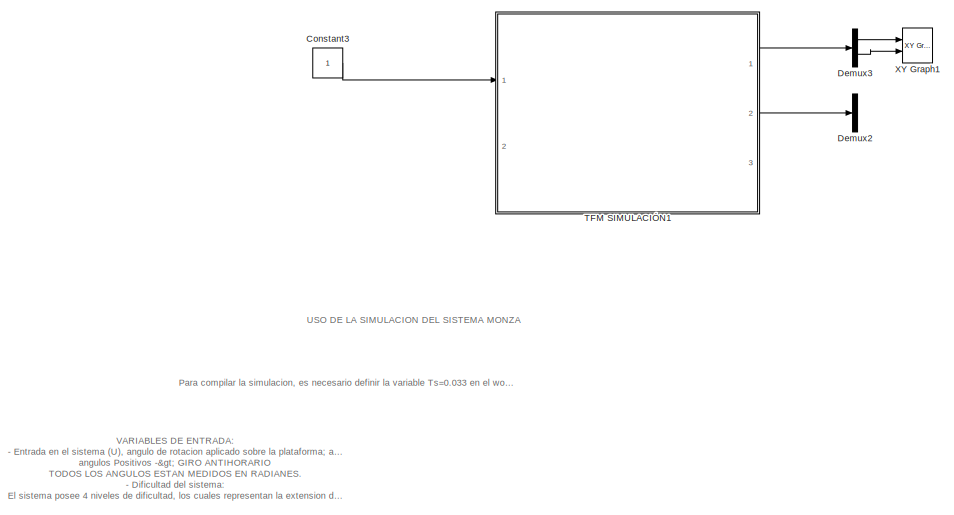
[diagram: root canvas - part 1/2, full width, top band]
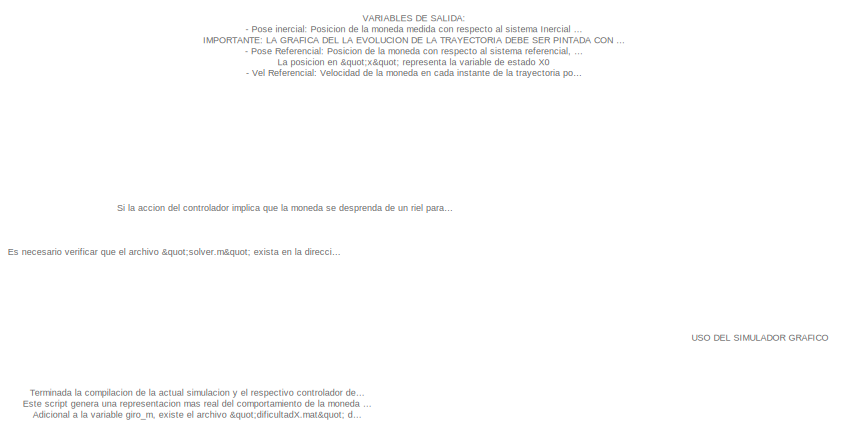
[diagram: root canvas - part 2/2, bottom center region]
MODEL slx_c74854fcc4fa
KIND model
CONFIG AbsTol = auto
CONFIG EnableMultiTasking = off
CONFIG FixedStep = auto
CONFIG MaxStep = auto
CONFIG MinStep = auto
CONFIG RelTol = 1e-3
CONFIG SampleTimeConstraint = Unconstrained
CONFIG SolverName = VariableStepAuto
CONFIG StartTime = 0.0
CONFIG StopTime = 20
BLOCK [Constant] Constant3
BLOCK [Demux] Demux2
  Outputs = 2
  Ports = [1, 2]
BLOCK [Demux] Demux3
  Outputs = 2
  Ports = [1, 2]
BLOCK [ModelReference] TFM SIMULACIÓN1
  Gain = 0.05
  Gain2 = 0.0223
  ModelNameDialog = TFM_SIMULACI_N1.slx
  ModelReferenceVersion = 7.0
  Ports = [2, 3]
  UsingDefaultArgumentValue = 0,0
BLOCK [Reference] XY Graph1  REF=simulink/Sinks/XY Graph
  Ports = [2]
  SourceBlock = simulink/Sinks/XY Graph
  SourceProductBaseCode = SL
  SourceType = XY scope.
ANNOTATION (root): VARIABLES DE SALIDA: - Pose inercial: Posicion de la moneda medida con respecto al sistema Inercial (estatico)en el centro geometrico del disco. IMPORTANTE: LA GRAFICA DEL LA EVOLUCION DE LA TRAYECTORIA DEBE SER PINTADA CON RESPECTO A ESTE SISTEMA - Pose Referencial: Posicion de la moneda con respecto al sistema referencial, sistema sobre el cual estan descritas las ecuaciones de la parabola que d...<+257ch>
ANNOTATION (root): VARIABLES DE ENTRADA: - Entrada en el sistema (U), angulo de rotacion aplicado sobre la plataforma; angulos Negativos -> GIRO HORARIO angulos Positivos -> GIRO ANTIHORARIO TODOS LOS ANGULOS ESTAN MEDIDOS EN RADIANES. - Dificultad del sistema: El sistema posee 4 niveles de dificultad, los cuales representan la extension de los rieles parabolicos en las pistas donde se desplaza la moneda. Para estab...<+97ch>
ANNOTATION (root): Es necesario verificar que el archivo "solver.m" exista en la direccion actual donde se esta ejecutando la simulacion debido a que este script es importante para resolver las ecuaciones de trayectoria de la caida de la moneda con el impacto del posterior riel parabolico.
ANNOTATION (root): Para compilar la simulacion, es necesario definir la variable Ts=0.033 en el workspace de MATLAB.
ANNOTATION (root): Si la accion del controlador implica que la moneda se desprenda de un riel parabolico y el juego "termine", la simulacion se detendra emitiendo un error de sistema, no significa que existe error de compilacion.
ANNOTATION (root): Terminada la compilacion de la actual simulacion y el respectivo controlador desarrollado, se gebera una variable llamada " giro_m " en el workspace, esta variable es el ingreso del script denominado " simulacion_monza_tfm.m ". Este script genera una representacion mas real del comportamiento de la moneda sobre la plataforma no lineal existente. Adicional a la variable giro_m, existe el archivo "d...<+214ch>
ANNOTATION (root): USO DE LA SIMULACION DEL SISTEMA MONZA
ANNOTATION (root): USO DEL SIMULADOR GRAFICO
LINE Constant3:1 -> TFM SIMULACIÓN1:1
LINE Demux3:1 -> XY Graph1:1
LINE Demux3:2 -> XY Graph1:2
LINE TFM SIMULACIÓN1:1 -> Demux3:1
LINE TFM SIMULACIÓN1:2 -> Demux2:1
